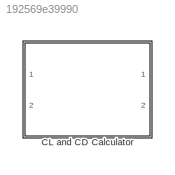
MODEL slx_192569e39990
KIND library
CONFIG AbsTol = auto
CONFIG EnableMultiTasking = off
CONFIG FixedStep = auto
CONFIG MaxStep = auto
CONFIG MinStep = auto
CONFIG RelTol = 1e-3
CONFIG SampleTimeConstraint = Unconstrained
CONFIG Solver = VariableStepAuto
CONFIG SolverName = VariableStepAuto
CONFIG StartTime = 0.0
CONFIG StopTime = 10.0
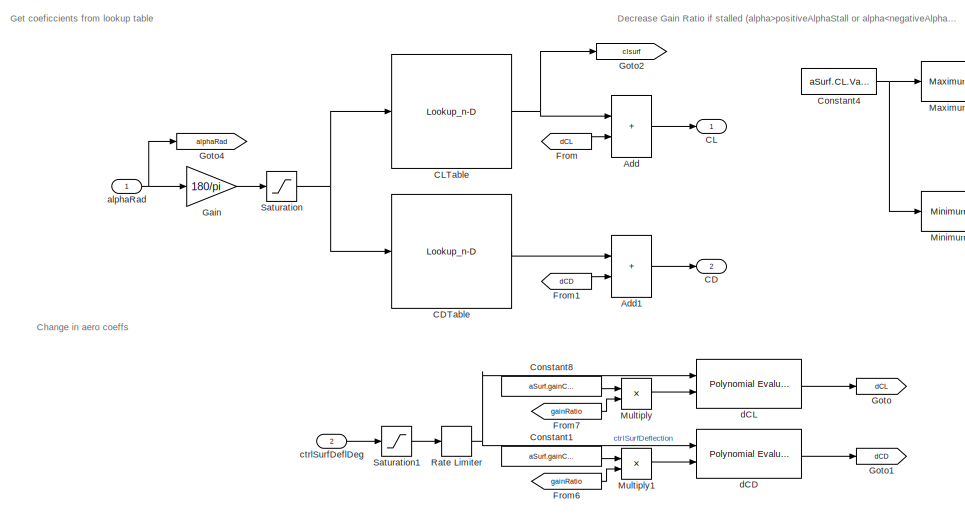
[diagram: CL and CD Calculator - part 1/2, left side, full height]
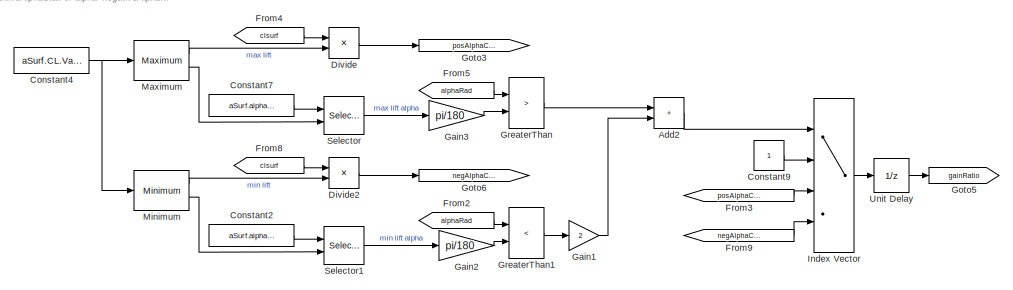
[diagram: CL and CD Calculator - part 2/2, middle right region]
BLOCK [SubSystem] CL and CD Calculator
  Ports = [2, 2]
  RequestExecContextInheritance = off
BLOCK [Sum] CL and CD Calculator/Add
  IconShape = rectangular
  Ports = [2, 1]
BLOCK [Sum] CL and CD Calculator/Add1
  IconShape = rectangular
  Ports = [2, 1]
BLOCK [Sum] CL and CD Calculator/Add2
  IconShape = rectangular
  Ports = [2, 1]
BLOCK [Outport] CL and CD Calculator/CD
  Port = 2
  VectorParamsAs1DForOutWhenUnconnected = off
BLOCK [Lookup_n-D] CL and CD Calculator/CDTable
  BreakpointsForDimension1 = aSurf.alpha.Value
  ExtrapMethod = Clip
  InternalRulePriority = Speed
  LookupTableObject = CLTable
  NumberOfTableDimensions = 1
  Ports = [1, 1]
  RndMeth = Simplest
  Table = aSurf.CD.Value
  UseLastTableValue = on
BLOCK [Outport] CL and CD Calculator/CL
  VectorParamsAs1DForOutWhenUnconnected = off
BLOCK [Lookup_n-D] CL and CD Calculator/CLTable
  BreakpointsForDimension1 = aSurf.alpha.Value
  ExtrapMethod = Clip
  InternalRulePriority = Speed
  LookupTableObject = CLTable
  NumberOfTableDimensions = 1
  Ports = [1, 1]
  RndMeth = Simplest
  Table = aSurf.CL.Value
  UseLastTableValue = on
BLOCK [Constant] CL and CD Calculator/Constant1
  NameLocation = top
  Value = aSurf.gainCD.Value
BLOCK [Constant] CL and CD Calculator/Constant2
  Value = aSurf.alpha.Value
BLOCK [Constant] CL and CD Calculator/Constant4
  Value = aSurf.CL.Value
BLOCK [Constant] CL and CD Calculator/Constant7
  Value = aSurf.alpha.Value
BLOCK [Constant] CL and CD Calculator/Constant8
  NameLocation = top
  Value = aSurf.gainCL.Value
BLOCK [Constant] CL and CD Calculator/Constant9
BLOCK [Product] CL and CD Calculator/Divide
  Inputs = */
  Ports = [2, 1]
BLOCK [Product] CL and CD Calculator/Divide2
  Inputs = */
  Ports = [2, 1]
BLOCK [From] CL and CD Calculator/From
  GotoTag = dCL
BLOCK [From] CL and CD Calculator/From1
  GotoTag = dCD
BLOCK [From] CL and CD Calculator/From2
  GotoTag = alphaRad
BLOCK [From] CL and CD Calculator/From3
  GotoTag = posAlphaCLRatio
BLOCK [From] CL and CD Calculator/From4
  GotoTag = clsurf
BLOCK [From] CL and CD Calculator/From5
  GotoTag = alphaRad
BLOCK [From] CL and CD Calculator/From6
  GotoTag = gainRatio
BLOCK [From] CL and CD Calculator/From7
  GotoTag = gainRatio
BLOCK [From] CL and CD Calculator/From8
  GotoTag = clsurf
BLOCK [From] CL and CD Calculator/From9
  GotoTag = negAlphaCLRatio
BLOCK [Gain] CL and CD Calculator/Gain
  Gain = 180/pi
BLOCK [Gain] CL and CD Calculator/Gain1
  Gain = 2
BLOCK [Gain] CL and CD Calculator/Gain2
  Gain = pi/180
BLOCK [Gain] CL and CD Calculator/Gain3
  Gain = pi/180
BLOCK [Goto] CL and CD Calculator/Goto
  GotoTag = dCL
BLOCK [Goto] CL and CD Calculator/Goto1
  GotoTag = dCD
BLOCK [Goto] CL and CD Calculator/Goto2
  GotoTag = clsurf
BLOCK [Goto] CL and CD Calculator/Goto3
  GotoTag = posAlphaCLRatio
BLOCK [Goto] CL and CD Calculator/Goto4
  GotoTag = alphaRad
BLOCK [Goto] CL and CD Calculator/Goto5
  GotoTag = gainRatio
BLOCK [Goto] CL and CD Calculator/Goto6
  GotoTag = negAlphaCLRatio
BLOCK [RelationalOperator] CL and CD Calculator/GreaterThan
  InputSameDT = off
  Operator = >
  OutDataTypeStr = boolean
  Ports = [2, 1]
  RndMeth = Simplest
BLOCK [RelationalOperator] CL and CD Calculator/GreaterThan1
  InputSameDT = off
  Operator = <
  OutDataTypeStr = boolean
  Ports = [2, 1]
  RndMeth = Simplest
BLOCK [MultiPortSwitch] CL and CD Calculator/Index Vector
  DataPortOrder = Zero-based contiguous
  InputSameDT = off
  Ports = [4, 1]
  SaturateOnIntegerOverflow = off
  zeroidx = on
BLOCK [Reference] CL and CD Calculator/Maximum  REF=dspstat3/Maximum
  Ports = [1, 2]
  SourceBlock = dspstat3/Maximum
  SourceProductBaseCode = DS
  SourceType = Maximum
  UserDataPersistent = on
BLOCK [Reference] CL and CD Calculator/Minimum  REF=dspstat3/Minimum
  Ports = [1, 2]
  SourceBlock = dspstat3/Minimum
  SourceProductBaseCode = DS
  SourceType = Minimum
  UserDataPersistent = on
BLOCK [Product] CL and CD Calculator/Multiply
  Ports = [2, 1]
BLOCK [Product] CL and CD Calculator/Multiply1
  Ports = [2, 1]
BLOCK [RateLimiter] CL and CD Calculator/Rate Limiter
  FallingSlewLimit = -aSurf.maxCtrlDefSpeed.Value
  RisingSlewLimit = aSurf.maxCtrlDefSpeed.Value
  SampleTimeMode = inherited
BLOCK [Saturate] CL and CD Calculator/Saturation
  LowerLimit = -90
  UpperLimit = 90
BLOCK [Saturate] CL and CD Calculator/Saturation1
  LowerLimit = aSurf.minCtrlDef.Value
  UpperLimit = aSurf.maxCtrlDef.Value
BLOCK [Selector] CL and CD Calculator/Selector
  IndexOptions = Index vector (port)
  Indices = [1 3]
  InputPortWidth = length(vhcl.portWing.alpha.Value)
  OutputSizes = 1
  Ports = [2, 1]
BLOCK [Selector] CL and CD Calculator/Selector1
  IndexOptions = Index vector (port)
  Indices = [1 3]
  InputPortWidth = length(vhcl.portWing.alpha.Value)
  OutputSizes = 1
  Ports = [2, 1]
BLOCK [UnitDelay] CL and CD Calculator/Unit Delay
  HasFrameUpgradeWarning = on
  InitialCondition = 1
  SampleTime = -1
BLOCK [Inport] CL and CD Calculator/alphaRad
BLOCK [Inport] CL and CD Calculator/ctrlSurfDeflDeg
  Port = 2
BLOCK [Reference] CL and CD Calculator/dCD  REF=dsppolyfun/Polynomial
Evaluation
  Ports = [2, 1]
  SourceBlock = dsppolyfun/Polynomial\nEvaluation
  SourceProductBaseCode = DS
  SourceType = Polynomial Evaluation
BLOCK [Reference] CL and CD Calculator/dCL  REF=dsppolyfun/Polynomial
Evaluation
  Ports = [2, 1]
  SourceBlock = dsppolyfun/Polynomial\nEvaluation
  SourceProductBaseCode = DS
  SourceType = Polynomial Evaluation
ANNOTATION CL and CD Calculator: Change in aero coeffs
ANNOTATION CL and CD Calculator: Decrease Gain Ratio if stalled (alpha>positiveAlphaStall or alpha<negativeAlphaStall)
ANNOTATION CL and CD Calculator: Get coeficcients from lookup table
LINE CL and CD Calculator/Add1:1 -> CL and CD Calculator/CD:1
LINE CL and CD Calculator/Add2:1 -> CL and CD Calculator/Index Vector:1
LINE CL and CD Calculator/Add:1 -> CL and CD Calculator/CL:1
LINE CL and CD Calculator/CDTable:1 -> CL and CD Calculator/Add1:1
NET CL and CD Calculator/CLTable:1 -> CL and CD Calculator/Add:1, CL and CD Calculator/Goto2:1
LINE CL and CD Calculator/Constant1:1 -> CL and CD Calculator/Multiply1:1
LINE CL and CD Calculator/Constant2:1 -> CL and CD Calculator/Selector1:1
NET CL and CD Calculator/Constant4:1 -> CL and CD Calculator/Maximum:1, CL and CD Calculator/Minimum:1
LINE CL and CD Calculator/Constant7:1 -> CL and CD Calculator/Selector:1
LINE CL and CD Calculator/Constant8:1 -> CL and CD Calculator/Multiply:1
LINE CL and CD Calculator/Constant9:1 -> CL and CD Calculator/Index Vector:2
LINE CL and CD Calculator/Divide2:1 -> CL and CD Calculator/Goto6:1
LINE CL and CD Calculator/Divide:1 -> CL and CD Calculator/Goto3:1
LINE CL and CD Calculator/From1:1 -> CL and CD Calculator/Add1:2
LINE CL and CD Calculator/From2:1 -> CL and CD Calculator/GreaterThan1:1
LINE CL and CD Calculator/From3:1 -> CL and CD Calculator/Index Vector:3
LINE CL and CD Calculator/From4:1 -> CL and CD Calculator/Divide:1
LINE CL and CD Calculator/From5:1 -> CL and CD Calculator/GreaterThan:1
LINE CL and CD Calculator/From6:1 -> CL and CD Calculator/Multiply1:2
LINE CL and CD Calculator/From7:1 -> CL and CD Calculator/Multiply:2
LINE CL and CD Calculator/From8:1 -> CL and CD Calculator/Divide2:1
LINE CL and CD Calculator/From9:1 -> CL and CD Calculator/Index Vector:4
LINE CL and CD Calculator/From:1 -> CL and CD Calculator/Add:2
LINE CL and CD Calculator/Gain1:1 -> CL and CD Calculator/Add2:2
LINE CL and CD Calculator/Gain2:1 -> CL and CD Calculator/GreaterThan1:2
LINE CL and CD Calculator/Gain3:1 -> CL and CD Calculator/GreaterThan:2
LINE CL and CD Calculator/Gain:1 -> CL and CD Calculator/Saturation:1
LINE CL and CD Calculator/GreaterThan1:1 -> CL and CD Calculator/Gain1:1
LINE CL and CD Calculator/GreaterThan:1 -> CL and CD Calculator/Add2:1
LINE CL and CD Calculator/Index Vector:1 -> CL and CD Calculator/Unit Delay:1
LINE CL and CD Calculator/Maximum:1 -> CL and CD Calculator/Divide:2
LINE CL and CD Calculator/Maximum:2 -> CL and CD Calculator/Selector:2
LINE CL and CD Calculator/Minimum:1 -> CL and CD Calculator/Divide2:2
LINE CL and CD Calculator/Minimum:2 -> CL and CD Calculator/Selector1:2
LINE CL and CD Calculator/Multiply1:1 -> CL and CD Calculator/dCD:2
LINE CL and CD Calculator/Multiply:1 -> CL and CD Calculator/dCL:2
NET CL and CD Calculator/Rate Limiter:1 -> CL and CD Calculator/dCD:1, CL and CD Calculator/dCL:1
LINE CL and CD Calculator/Saturation1:1 -> CL and CD Calculator/Rate Limiter:1
NET CL and CD Calculator/Saturation:1 -> CL and CD Calculator/CDTable:1, CL and CD Calculator/CLTable:1
LINE CL and CD Calculator/Selector1:1 -> CL and CD Calculator/Gain2:1
LINE CL and CD Calculator/Selector:1 -> CL and CD Calculator/Gain3:1
LINE CL and CD Calculator/Unit Delay:1 -> CL and CD Calculator/Goto5:1
NET CL and CD Calculator/alphaRad:1 -> CL and CD Calculator/Gain:1, CL and CD Calculator/Goto4:1
LINE CL and CD Calculator/ctrlSurfDeflDeg:1 -> CL and CD Calculator/Saturation1:1
LINE CL and CD Calculator/dCD:1 -> CL and CD Calculator/Goto1:1
LINE CL and CD Calculator/dCL:1 -> CL and CD Calculator/Goto:1
note: NET lines group one-source signal fan-out (src -> all destinations, sorted); 1:1 wires keep LINE
